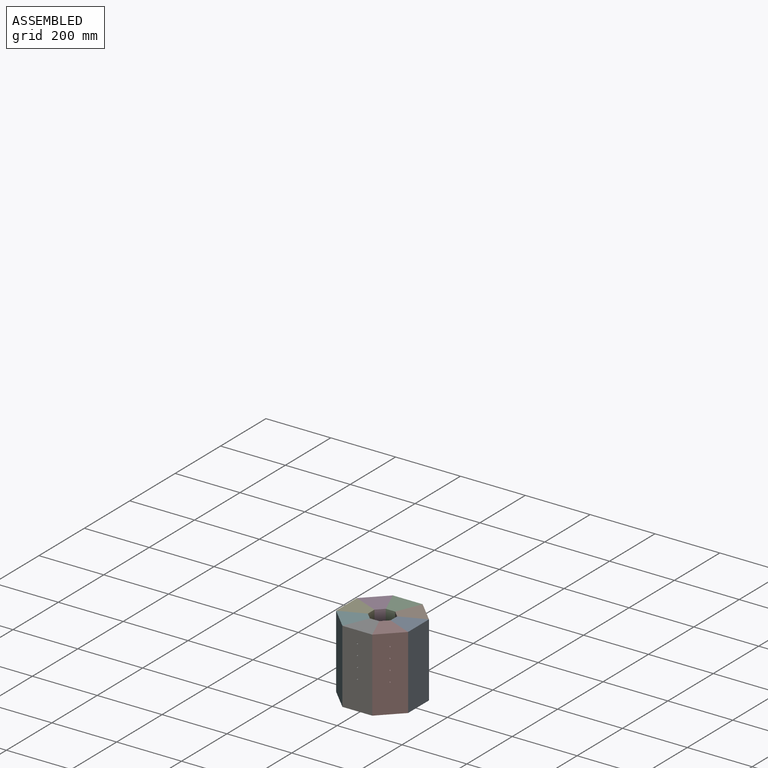
[diagram: assembled view]
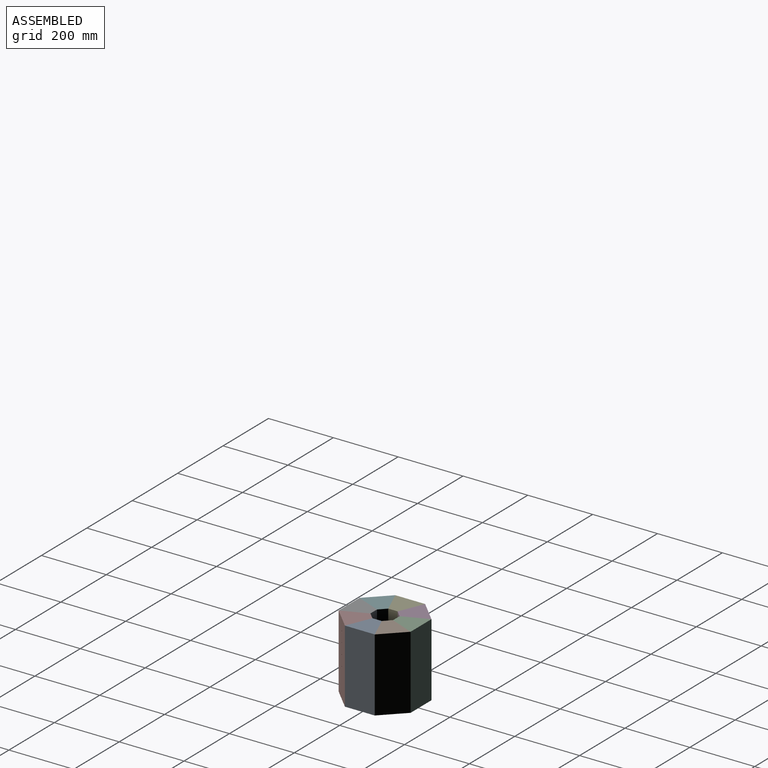
[diagram: assembled view, second angle]
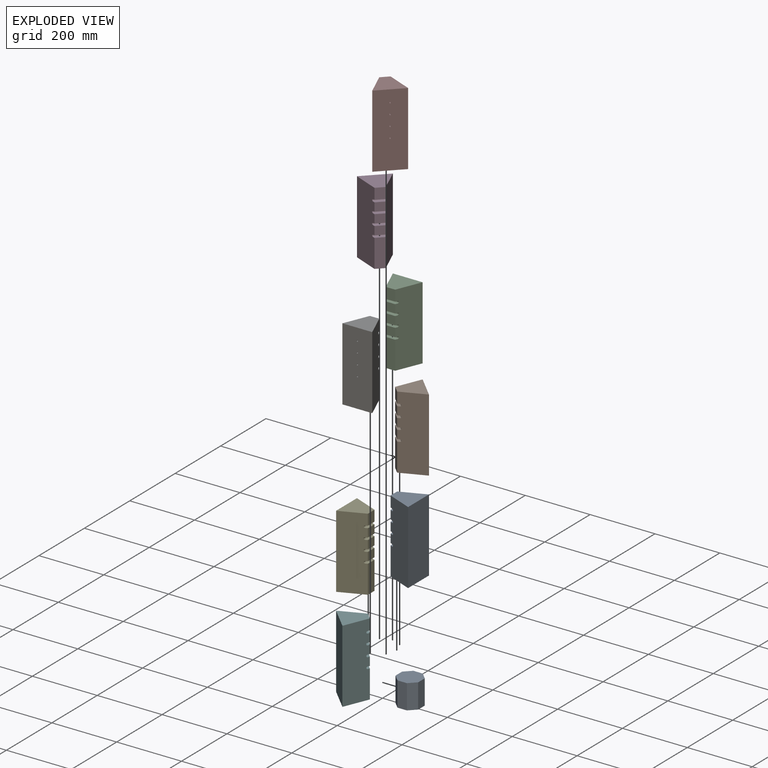
[diagram: exploded view]
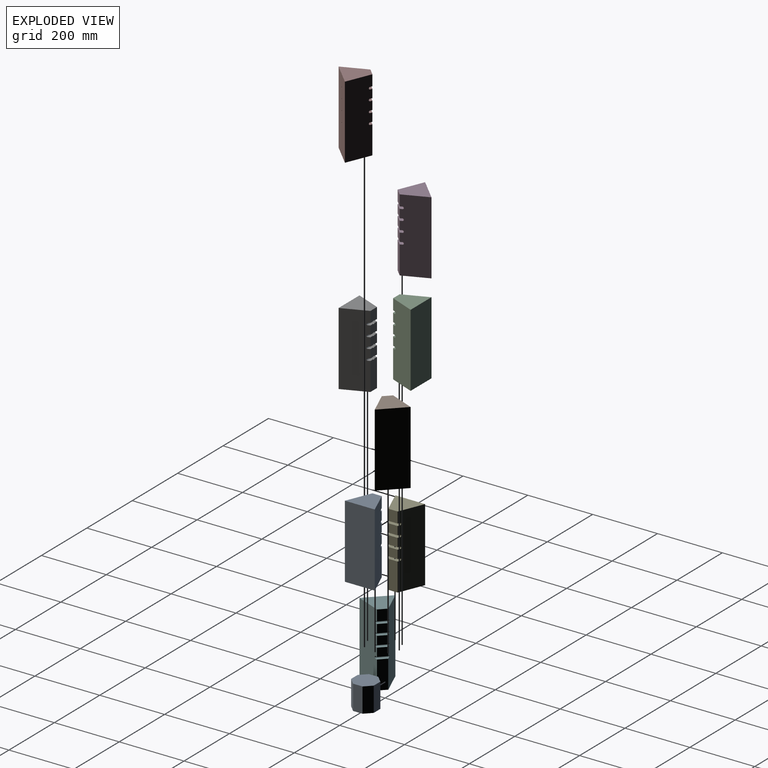
[diagram: exploded view, second angle]
FCSTD DOCUMENT  (FreeCAD 1.0R39319 (Git))
Label: OCT-CHMBR-A
License: Creative Commons Attribution 4.0
LicenseURL: https://creativecommons.org/licenses/by/4.0/
objects: App::Link×9, App::FeaturePython×9, Sketcher::SketchObject×4, PartDesign::Body×3, PartDesign::Pad×2, PartDesign::LinearPattern×2, App::VarSet×1, PartDesign::Pocket×1, PartDesign::FeatureBase×1, PartDesign::Groove×1, Assembly::JointGroup×1, Assembly::AssemblyObject×1
note: 29 computed .brp shape members not serialized (recipe doc carries the construction recipe); baked Part::Feature solids carry a one-line shape summary decoded from their .brp

FEATURE [Sketcher::SketchObject] Sketch
  ArcFitTolerance = 1e-06
  AttachmentSupport = -> [XY_Plane]
  FullyConstrained = true
  MakeInternals = false
  MapMode = 5
  expr: Constraints[53] = <<dims>>.brickDepth
  expr: Constraints[55] = <<dims>>.chamberDiameter
  sketch-geometry (20):
    g0: LineSegment StartX=45.9777 StartY=111 StartZ=0 EndX=-45.9777 EndY=111 EndZ=0
    g1: LineSegment [constr] StartX=-45.9777 StartY=111 StartZ=0 EndX=-111 EndY=45.9777 EndZ=0
    g2: LineSegment [constr] StartX=-111 StartY=45.9777 StartZ=0 EndX=-111 EndY=-45.9777 EndZ=0
    g3: LineSegment [constr] StartX=-111 StartY=-45.9777 StartZ=0 EndX=-45.9777 EndY=-111 EndZ=0
    g4: LineSegment [constr] StartX=-45.9777 StartY=-111 StartZ=0 EndX=45.9777 EndY=-111 EndZ=0
    g5: LineSegment [constr] StartX=45.9777 StartY=-111 StartZ=0 EndX=111 EndY=-45.9777 EndZ=0
    g6: LineSegment [constr] StartX=111 StartY=-45.9777 StartZ=0 EndX=111 EndY=45.9777 EndZ=0
    g7: LineSegment [constr] StartX=111 StartY=45.9777 StartZ=0 EndX=45.9777 EndY=111 EndZ=0
    g8: Circle [constr] CenterX=0 CenterY=0 CenterZ=0 NormalX=0 NormalY=0 NormalZ=1 AngleXU=0 Radius=120.146
    g9: LineSegment [constr] StartX=-14.4975 StartY=35 StartZ=0 EndX=-35 EndY=14.4975 EndZ=0
    g10: LineSegment [constr] StartX=-35 StartY=14.4975 StartZ=0 EndX=-35 EndY=-14.4975 EndZ=0
    g11: LineSegment [constr] StartX=-35 StartY=-14.4975 StartZ=0 EndX=-14.4975 EndY=-35 EndZ=0
    g12: LineSegment [constr] StartX=-14.4975 StartY=-35 StartZ=0 EndX=14.4975 EndY=-35 EndZ=0
    g13: LineSegment [constr] StartX=14.4975 StartY=-35 StartZ=0 EndX=35 EndY=-14.4975 EndZ=0
    g14: LineSegment [constr] StartX=35 StartY=-14.4975 StartZ=0 EndX=35 EndY=14.4975 EndZ=0
    g15: LineSegment [constr] StartX=35 StartY=14.4975 StartZ=0 EndX=14.4975 EndY=35 EndZ=0
    g16: LineSegment StartX=14.4975 StartY=35 StartZ=0 EndX=-14.4975 EndY=35 EndZ=0
    g17: Circle [constr] CenterX=0 CenterY=0 CenterZ=0 NormalX=0 NormalY=0 NormalZ=1 AngleXU=0 Radius=37.8837
    g18: LineSegment StartX=-45.9777 StartY=111 StartZ=0 EndX=-14.4975 EndY=35 EndZ=0
    g19: LineSegment StartX=14.4975 StartY=35 StartZ=0 EndX=45.9777 EndY=111 EndZ=0
  constraints (44):
    c: Coincident(g0,g1)
    c: Coincident(g1,g2)
    c: Coincident(g2,g3)
    c: Coincident(g3,g4)
    c: Coincident(g4,g5)
    c: Coincident(g5,g6)
    c: Coincident(g6,g7)
    c: Coincident(g7,g0)
    c: Equal(g0, g1-g7) x7
    c: PointOnObject(g0,g8)
    c: PointOnObject(g1,g8)
    c: PointOnObject(g2,g8)
    c: PointOnObject(g3,g8)
    c: PointOnObject(g4,g8)
    c: PointOnObject(g5,g8)
    c: PointOnObject(g6,g8)
    c: PointOnObject(g7,g8)
    c: Coincident(g8,g-1)
    c: Horizontal(g0)
    c: Coincident(g9,g10)
    c: Coincident(g10,g11)
    c: Coincident(g11,g12)
    c: Coincident(g12,g13)
    c: Coincident(g13,g14)
    c: Coincident(g14,g15)
    c: Coincident(g15,g16)
    c: Coincident(g16,g9)
    c: Equal(g9, g10-g16) x7
    c: PointOnObject(g9,g17)
    c: PointOnObject(g10,g17)
    c: PointOnObject(g11,g17)
    c: PointOnObject(g12,g17)
    c: PointOnObject(g13,g17)
    c: PointOnObject(g14,g17)
    c: PointOnObject(g15,g17)
    c: PointOnObject(g16,g17)
    c: Coincident(g17,g8)
    c: Coincident(g18,g0)
    c: Coincident(g18,g9)
    c: Coincident(g19,g15)
    c: Coincident(g19,g0)
    c: DistanceY(g9,g0) = 76
    c: Horizontal(g16)
    c: DistanceY(g11,g9) = 70
FEATURE [App::VarSet] VarSet  label="dims"
  barDiameter = 4
  baseHeight = 76
  bottomGrooveHeight = 90
  brickDepth = 76
  brickHeight = 226
  chamberDiameter = 70
  coilOD = 7.04
  elementCount = 4
  elementSpacing = 33
  heaterWireDiameter = 1.02
  loopDiameter = 83
  nutThickness = 4
FEATURE [PartDesign::Pad] Pad
  Direction = (0,0,1)
  Length = 226
  Length2 = 10
  Profile = -> Sketch
  ReferenceAxis = -> Sketch [N_Axis]
  Suppressed = false
  Type = 0
  expr: Length = <<dims>>.brickHeight
FEATURE [Sketcher::SketchObject] Sketch001
  ArcFitTolerance = 1e-06
  AttachmentSupport = -> [YZ_Plane]
  FullyConstrained = true
  MakeInternals = false
  MapMode = 5
  Placement = pos=(0,0,0) rot=(0.57735,0.57735,0.57735;2.0944rad)
  expr: Constraints[6] = <<dims>>.loopDiameter / 2
  expr: Constraints[7] = <<dims>>.bottomGrooveHeight
  expr: Constraints[8] = <<dims>>.coilOD
  sketch-geometry (4):
    g0: ArcOfCircle CenterX=0 CenterY=90 CenterZ=0 NormalX=0 NormalY=0 NormalZ=1 AngleXU=0 Radius=3.52 StartAngle=1.5708 EndAngle=4.71239
    g1: ArcOfCircle CenterX=41.5 CenterY=90 CenterZ=0 NormalX=0 NormalY=0 NormalZ=1 AngleXU=0 Radius=3.52 StartAngle=4.71239 EndAngle=7.85398
    g2: LineSegment StartX=2e-16 StartY=93.52 StartZ=0 EndX=41.5 EndY=93.52 EndZ=0
    g3: LineSegment StartX=-6e-16 StartY=86.48 StartZ=0 EndX=41.5 EndY=86.48 EndZ=0
  constraints (10):
    c: Tangent(g0,g2) = 1.5708
    c: Tangent(g0,g3) = -1.5708
    c: Tangent(g1,g2) = 1.5708
    c: Tangent(g1,g3) = -1.5708
    c: Equal(g0,g1)
    c: Horizontal(g2)
    c: DistanceX(g-1,g1) = 41.5
    c: DistanceY(g-1,g1) = 90
    c: DistanceY(g0,g0) = 7.04
    c: PointOnObject(g0,g-2)
FEATURE [PartDesign::Pocket] Pocket  label="element groove"
  BaseFeature = -> Pad
  Direction = (-1,0,0)
  Length = 5
  Length2 = 5
  Midplane = true
  Profile = -> Sketch001
  ReferenceAxis = -> Sketch001 [N_Axis]
  Suppressed = false
  Type = 1
FEATURE [PartDesign::LinearPattern] LinearPattern
  BaseFeature = -> Pocket
  Direction = -> Z_Axis
  Length = 99
  Mode = 1
  Occurrences = 4
  Offset = 33
  Originals = -> [Pocket]
  Suppressed = false
  TransformMode = 0
  expr: Occurrences = <<dims>>.elementCount
  expr: Offset = <<dims>>.elementSpacing
FEATURE [PartDesign::Body] Body  label="OCT-CHBRK-AA"
  AllowCompound = false
  Group = -> [Sketch,Pad,Sketch001,Pocket,LinearPattern]
  Origin = -> Origin
  Tip = -> LinearPattern
FEATURE [PartDesign::FeatureBase] Clone
  BaseFeature = -> Body
  Suppressed = false
FEATURE [Sketcher::SketchObject] Sketch002
  ArcFitTolerance = 1e-06
  AttachmentSupport = -> [YZ_Plane001]
  FullyConstrained = true
  MakeInternals = false
  MapMode = 5
  Placement = pos=(0,0,0) rot=(0.57735,0.57735,0.57735;2.0944rad)
  expr: Constraints[12] = <<dims>>.chamberDiameter / 2
  expr: Constraints[14] = <<dims>>.barDiameter / 2
  expr: Constraints[15] = <<dims>>.heaterWireDiameter + 2 * <<dims>>.nutThickness + 2 mm
  expr: Constraints[16] = <<dims>>.bottomGrooveHeight
  expr: Constraints[17] = <<dims>>.brickDepth
  sketch-geometry (6):
    g0: LineSegment StartX=35 StartY=90 StartZ=0 EndX=111 EndY=90 EndZ=0
    g1: LineSegment StartX=111 StartY=90 StartZ=0 EndX=111 EndY=92 EndZ=0
    g2: LineSegment StartX=111 StartY=92 StartZ=0 EndX=46.02 EndY=92 EndZ=0
    g3: LineSegment StartX=46.02 StartY=92 StartZ=0 EndX=46.02 EndY=95 EndZ=0
    g4: LineSegment StartX=46.02 StartY=95 StartZ=0 EndX=35 EndY=95 EndZ=0
    g5: LineSegment StartX=35 StartY=95 StartZ=0 EndX=35 EndY=90 EndZ=0
  constraints (18):
    c: Horizontal(g0)
    c: Coincident(g0,g1)
    c: Coincident(g1,g2)
    c: Horizontal(g2)
    c: Coincident(g2,g3)
    c: Coincident(g3,g4)
    c: Horizontal(g4)
    c: Coincident(g4,g5)
    c: Coincident(g5,g0)
    c: Vertical(g1)
    c: Vertical(g3)
    c: Vertical(g5)
    c: DistanceX(g-1,g0) = 35
    c: DistanceY(g5,g5) = 5
    c: DistanceY(g1,g1) = 2
    c: DistanceX(g4,g4) = 11.02
    c: DistanceY(g-1,g0) = 90
    c: DistanceX(g4,g1) = 76
FEATURE [PartDesign::Groove] Groove
  Angle = 360
  Angle2 = 60
  Axis = (0,1,0)
  Base = (0,35,90)
  BaseFeature = -> Clone
  Profile = -> Sketch002
  ReferenceAxis = -> Sketch002 [Edge1]
  Suppressed = false
  Type = 0
FEATURE [PartDesign::LinearPattern] LinearPattern001
  BaseFeature = -> Groove
  Direction = -> Z_Axis001
  Length = 99
  Mode = 1
  Occurrences = 4
  Offset = 33
  Originals = -> [Groove]
  Suppressed = false
  TransformMode = 0
  expr: Occurrences = <<dims>>.elementCount
  expr: Offset = <<dims>>.elementSpacing
FEATURE [PartDesign::Body] Body001  label="OCT-CHBRK-BA"
  AllowCompound = false
  Group = -> [Clone,Sketch002,Groove,LinearPattern001]
  Origin = -> Origin001
  Tip = -> LinearPattern001
FEATURE [Sketcher::SketchObject] Sketch003
  ArcFitTolerance = 1e-06
  AttachmentSupport = -> [XY_Plane002]
  FullyConstrained = true
  MakeInternals = false
  MapMode = 5
  expr: Constraints[25] = <<dims>>.chamberDiameter
  sketch-geometry (9):
    g0: LineSegment StartX=-14.4975 StartY=35 StartZ=0 EndX=-35 EndY=14.4975 EndZ=0
    g1: LineSegment StartX=-35 StartY=14.4975 StartZ=0 EndX=-35 EndY=-14.4975 EndZ=0
    g2: LineSegment StartX=-35 StartY=-14.4975 StartZ=0 EndX=-14.4975 EndY=-35 EndZ=0
    g3: LineSegment StartX=-14.4975 StartY=-35 StartZ=0 EndX=14.4975 EndY=-35 EndZ=0
    g4: LineSegment StartX=14.4975 StartY=-35 StartZ=0 EndX=35 EndY=-14.4975 EndZ=0
    g5: LineSegment StartX=35 StartY=-14.4975 StartZ=0 EndX=35 EndY=14.4975 EndZ=0
    g6: LineSegment StartX=35 StartY=14.4975 StartZ=0 EndX=14.4975 EndY=35 EndZ=0
    g7: LineSegment StartX=14.4975 StartY=35 StartZ=0 EndX=-14.4975 EndY=35 EndZ=0
    g8: Circle [constr] CenterX=0 CenterY=0 CenterZ=0 NormalX=0 NormalY=0 NormalZ=1 AngleXU=0 Radius=37.8837
  constraints (20):
    c: Coincident(g0,g1)
    c: Coincident(g1,g2)
    c: Coincident(g2,g3)
    c: Coincident(g3,g4)
    c: Coincident(g4,g5)
    c: Coincident(g5,g6)
    c: Coincident(g6,g7)
    c: Coincident(g7,g0)
    c: Equal(g0, g1-g7) x7
    c: PointOnObject(g0,g8)
    c: PointOnObject(g1,g8)
    c: PointOnObject(g2,g8)
    c: PointOnObject(g3,g8)
    c: PointOnObject(g4,g8)
    c: PointOnObject(g5,g8)
    c: PointOnObject(g6,g8)
    c: PointOnObject(g7,g8)
    c: Coincident(g8,g-1)
    c: Horizontal(g7)
    c: DistanceY(g2,g0) = 70
FEATURE [PartDesign::Pad] Pad001
  Direction = (0,0,1)
  Length = 76
  Length2 = 10
  Profile = -> Sketch003
  ReferenceAxis = -> Sketch003 [N_Axis]
  Suppressed = false
  Type = 0
  expr: Length = <<dims>>.baseHeight
FEATURE [PartDesign::Body] Body002  label="OCT-CHBRK-CA"
  AllowCompound = false
  Group = -> [Sketch003,Pad001]
  Origin = -> Origin002
  Tip = -> Pad001
FEATURE [App::Link] OCT_CHBRK_CA  label="OCT-CHBRK-CA"
  LinkedObject = -> Body002
FEATURE [App::FeaturePython] GroundedJoint  # Assembly grounded joint (typed FeaturePython)
  ObjectToGround = -> OCT_CHBRK_CA
FEATURE [App::Link] OCT_CHBRK_AA  label="OCT-CHBRK-AA"
  LinkPlacement = pos=(-1.44e-14,4.8e-15,0) rot=(0,0,1;4.71239rad)
  LinkedObject = -> Body
  Placement = pos=(-1.44e-14,4.8e-15,0) rot=(0,0,1;4.71239rad)
FEATURE [App::Link] OCT_CHBRK_AA001  label="OCT-CHBRK-AA"
  LinkPlacement = pos=(-2.13e-14,-5.3e-15,0) rot=(0,0,-1;0.785398rad)
  LinkedObject = -> Body
  Placement = pos=(-2.13e-14,-5.3e-15,0) rot=(0,0,-1;0.785398rad)
FEATURE [App::Link] OCT_CHBRK_AA002  label="OCT-CHBRK-AA"
  LinkPlacement = pos=(5.3e-15,-1.42e-14,0) rot=(0,0,1;0rad)
  LinkedObject = -> Body
  Placement = pos=(5.3e-15,-1.42e-14,0) rot=(0,0,1;0rad)
FEATURE [App::Link] OCT_CHBRK_AA003  label="OCT-CHBRK-AA"
  LinkPlacement = pos=(3.55e-14,7.1e-15,0) rot=(0,0,1;0.785398rad)
  LinkedObject = -> Body
  Placement = pos=(3.55e-14,7.1e-15,0) rot=(0,0,1;0.785398rad)
FEATURE [App::Link] OCT_CHBRK_AA004  label="OCT-CHBRK-AA"
  LinkPlacement = pos=(2.78e-14,1.91e-14,0) rot=(0,0,1;1.5708rad)
  LinkedObject = -> Body
  Placement = pos=(2.78e-14,1.91e-14,0) rot=(0,0,1;1.5708rad)
FEATURE [App::Link] OCT_CHBRK_AA005  label="OCT-CHBRK-AA"
  LinkPlacement = pos=(1.42e-14,2.84e-14,0) rot=(0,0,1;2.35619rad)
  LinkedObject = -> Body
  Placement = pos=(1.42e-14,2.84e-14,0) rot=(0,0,1;2.35619rad)
FEATURE [App::Link] OCT_CHBRK_BA  label="OCT-CHBRK-BA"
  LinkPlacement = pos=(-2.94e-14,2.84e-14,0) rot=(0,0,1;3.14159rad)
  LinkedObject = -> Body001
  Placement = pos=(-2.94e-14,2.84e-14,0) rot=(0,0,1;3.14159rad)
FEATURE [App::Link] OCT_CHBRK_BA001  label="OCT-CHBRK-BA"
  LinkPlacement = pos=(-2.52e-14,5.3e-15,0) rot=(0,0,1;3.92699rad)
  LinkedObject = -> Body001
  Placement = pos=(-2.52e-14,5.3e-15,0) rot=(0,0,1;3.92699rad)
FEATURE [App::FeaturePython] Joint  label="Fixed"  # Assembly joint (typed FeaturePython)
  Activated = true
  AngleMax = 0
  AngleMin = 0
  Detach1 = false
  Detach2 = false
  Distance = 0
  Distance2 = 0
  EnableAngleMax = false
  EnableAngleMin = false
  EnableLengthMax = false
  EnableLengthMin = false
  JointType = 0 (Fixed)
  LengthMax = 0
  LengthMin = 0
  Offset2 = pos=(0,0,0) rot=(0,0,1;3.14159rad)
  Placement1 = pos=(-14.4975,-35,0) rot=(0,0,1;0rad)
  Placement2 = pos=(14.4975,35,0) rot=(0,0,1;3.14159rad)
  Reference1 = -> Assembly [OCT_CHBRK_CA.Edge8,OCT_CHBRK_CA.Vertex7]
  Reference2 = -> Assembly [OCT_CHBRK_BA.Edge20,OCT_CHBRK_BA.Vertex1]
FEATURE [App::FeaturePython] Joint001  label="Fixed"  # Assembly joint (typed FeaturePython)
  Activated = true
  AngleMax = 0
  AngleMin = 0
  Detach1 = false
  Detach2 = false
  Distance = 0
  Distance2 = 0
  EnableAngleMax = false
  EnableAngleMin = false
  EnableLengthMax = false
  EnableLengthMin = false
  JointType = 0 (Fixed)
  LengthMax = 0
  LengthMin = 0
  Offset2 = pos=(0,0,0) rot=(0,0,1;2.35619rad)
  Placement1 = pos=(14.4975,-35,0) rot=(0,0,1;0rad)
  Placement2 = pos=(14.4975,35,0) rot=(0,0,1;2.35619rad)
  Reference1 = -> Assembly [OCT_CHBRK_CA.Edge11,OCT_CHBRK_CA.Vertex9]
  Reference2 = -> Assembly [OCT_CHBRK_BA001.Edge20,OCT_CHBRK_BA001.Vertex1]
FEATURE [App::FeaturePython] Joint002  label="Fixed"  # Assembly joint (typed FeaturePython)
  Activated = true
  AngleMax = 0
  AngleMin = 0
  Detach1 = false
  Detach2 = false
  Distance = 0
  Distance2 = 0
  EnableAngleMax = false
  EnableAngleMin = false
  EnableLengthMax = false
  EnableLengthMin = false
  JointType = 0 (Fixed)
  LengthMax = 0
  LengthMin = 0
  Offset2 = pos=(0,0,0) rot=(0,0,1;1.5708rad)
  Placement1 = pos=(35,-14.4975,0) rot=(0,0,1;0rad)
  Placement2 = pos=(14.4975,35,0) rot=(0,0,1;1.5708rad)
  Reference1 = -> Assembly [OCT_CHBRK_CA.Edge14,OCT_CHBRK_CA.Vertex11]
  Reference2 = -> Assembly [OCT_CHBRK_AA.Edge20,OCT_CHBRK_AA.Vertex1]
FEATURE [App::FeaturePython] Joint003  label="Fixed"  # Assembly joint (typed FeaturePython)
  Activated = true
  AngleMax = 0
  AngleMin = 0
  Detach1 = false
  Detach2 = false
  Distance = 0
  Distance2 = 0
  EnableAngleMax = false
  EnableAngleMin = false
  EnableLengthMax = false
  EnableLengthMin = false
  JointType = 0 (Fixed)
  LengthMax = 0
  LengthMin = 0
  Offset2 = pos=(0,0,0) rot=(0,0,1;0.785398rad)
  Placement1 = pos=(35,14.4975,0) rot=(0,0,1;0rad)
  Placement2 = pos=(14.4975,35,0) rot=(0,0,1;0.785398rad)
  Reference1 = -> Assembly [OCT_CHBRK_CA.Edge17,OCT_CHBRK_CA.Vertex13]
  Reference2 = -> Assembly [OCT_CHBRK_AA001.Edge20,OCT_CHBRK_AA001.Vertex1]
FEATURE [App::FeaturePython] Joint004  label="Fixed"  # Assembly joint (typed FeaturePython)
  Activated = true
  AngleMax = 0
  AngleMin = 0
  Detach1 = false
  Detach2 = false
  Distance = 0
  Distance2 = 0
  EnableAngleMax = false
  EnableAngleMin = false
  EnableLengthMax = false
  EnableLengthMin = false
  JointType = 0 (Fixed)
  LengthMax = 0
  LengthMin = 0
  Placement1 = pos=(14.4975,35,0) rot=(0,0,1;0rad)
  Placement2 = pos=(14.4975,35,0) rot=(0,0,1;0rad)
  Reference1 = -> Assembly [OCT_CHBRK_AA002.Edge20,OCT_CHBRK_AA002.Vertex1]
  Reference2 = -> Assembly [OCT_CHBRK_CA.Edge20,OCT_CHBRK_CA.Vertex15]
FEATURE [App::FeaturePython] Joint005  label="Fixed"  # Assembly joint (typed FeaturePython)
  Activated = true
  AngleMax = 0
  AngleMin = 0
  Detach1 = false
  Detach2 = false
  Distance = 0
  Distance2 = 0
  EnableAngleMax = false
  EnableAngleMin = false
  EnableLengthMax = false
  EnableLengthMin = false
  JointType = 0 (Fixed)
  LengthMax = 0
  LengthMin = 0
  Offset2 = pos=(0,0,0) rot=(0,0,1;0.785398rad)
  Placement1 = pos=(14.4975,35,0) rot=(0,0,1;0rad)
  Placement2 = pos=(-14.4975,35,0) rot=(0,0,1;0.785398rad)
  Reference1 = -> Assembly [OCT_CHBRK_AA003.Edge20,OCT_CHBRK_AA003.Vertex1]
  Reference2 = -> Assembly [OCT_CHBRK_CA.Edge1,OCT_CHBRK_CA.Vertex1]
FEATURE [App::FeaturePython] Joint006  label="Fixed"  # Assembly joint (typed FeaturePython)
  Activated = true
  AngleMax = 0
  AngleMin = 0
  Detach1 = false
  Detach2 = false
  Distance = 0
  Distance2 = 0
  EnableAngleMax = false
  EnableAngleMin = false
  EnableLengthMax = false
  EnableLengthMin = false
  JointType = 0 (Fixed)
  LengthMax = 0
  LengthMin = 0
  Offset2 = pos=(0,0,0) rot=(0,0,1;1.5708rad)
  Placement1 = pos=(14.4975,35,0) rot=(0,0,1;0rad)
  Placement2 = pos=(-35,14.4975,0) rot=(0,0,1;1.5708rad)
  Reference1 = -> Assembly [OCT_CHBRK_AA004.Edge20,OCT_CHBRK_AA004.Vertex1]
  Reference2 = -> Assembly [OCT_CHBRK_CA.Edge2,OCT_CHBRK_CA.Vertex3]
FEATURE [App::FeaturePython] Joint007  label="Fixed"  # Assembly joint (typed FeaturePython)
  Activated = true
  AngleMax = 0
  AngleMin = 0
  Detach1 = false
  Detach2 = false
  Distance = 0
  Distance2 = 0
  EnableAngleMax = false
  EnableAngleMin = false
  EnableLengthMax = false
  EnableLengthMin = false
  JointType = 0 (Fixed)
  LengthMax = 0
  LengthMin = 0
  Offset2 = pos=(0,0,0) rot=(0,0,1;2.35619rad)
  Placement1 = pos=(14.4975,35,0) rot=(0,0,1;0rad)
  Placement2 = pos=(-35,-14.4975,0) rot=(0,0,1;2.35619rad)
  Reference1 = -> Assembly [OCT_CHBRK_AA005.Edge20,OCT_CHBRK_AA005.Vertex1]
  Reference2 = -> Assembly [OCT_CHBRK_CA.Edge5,OCT_CHBRK_CA.Vertex5]
FEATURE [Assembly::JointGroup] Joints
  Group = -> [GroundedJoint,Joint,Joint001,Joint002,Joint003,Joint004,Joint005,Joint006,Joint007]
FEATURE [Assembly::AssemblyObject] Assembly  label="OCT-CHMBR-A"
  Group = -> [Joints,OCT_CHBRK_CA,GroundedJoint,OCT_CHBRK_AA,OCT_CHBRK_AA001,OCT_CHBRK_AA002,OCT_CHBRK_AA003,OCT_CHBRK_AA004,OCT_CHBRK_AA005,OCT_CHBRK_BA,OCT_CHBRK_BA001,Joint,Joint001,Joint002,Joint003,Joint004,Joint005,Joint006,Joint007]
  Origin = -> Origin003
  Type = Assembly
